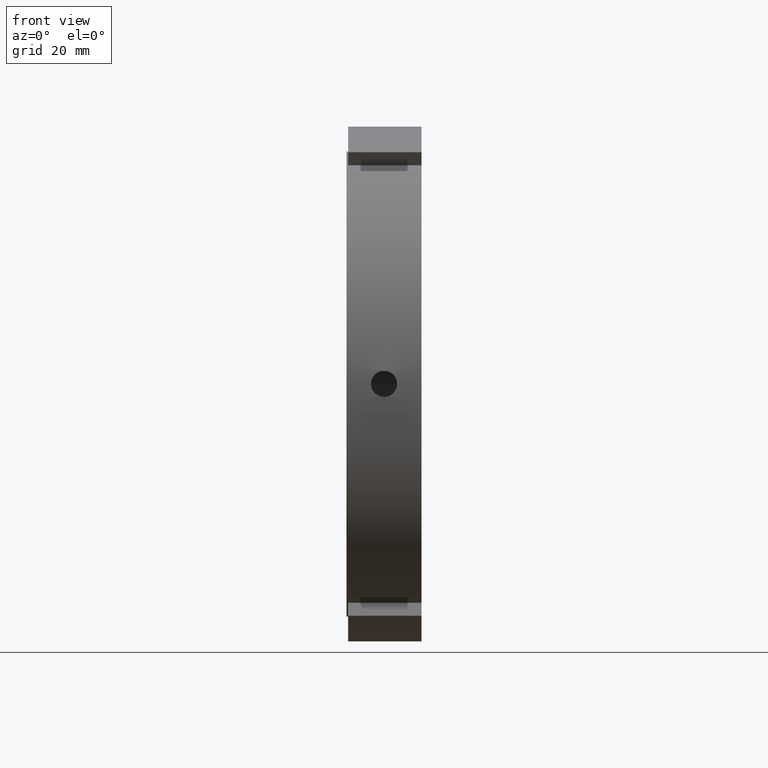
[diagram: clean part render]
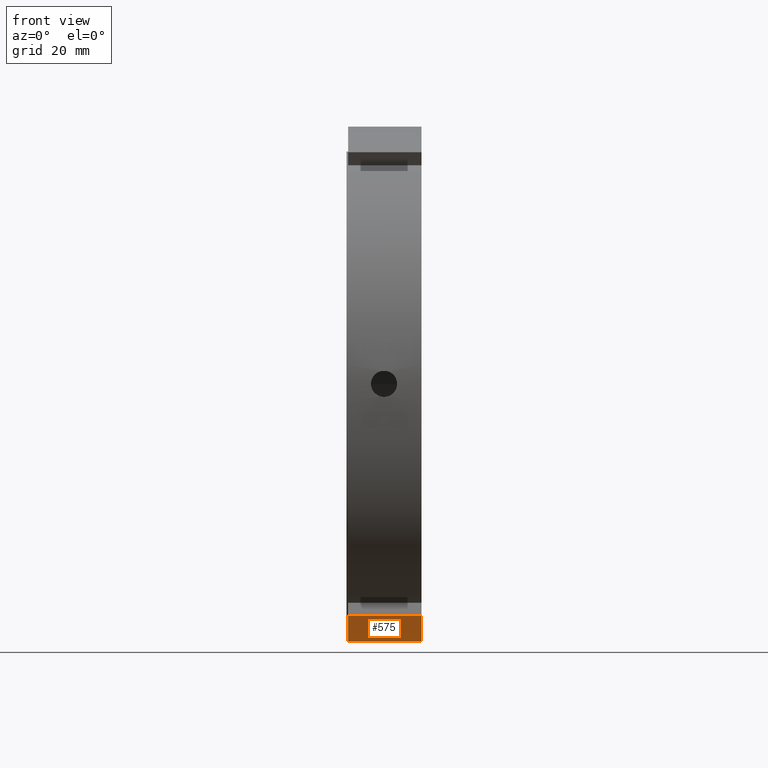
[diagram: same view with one face highlighted and labeled with its STEP entity id]
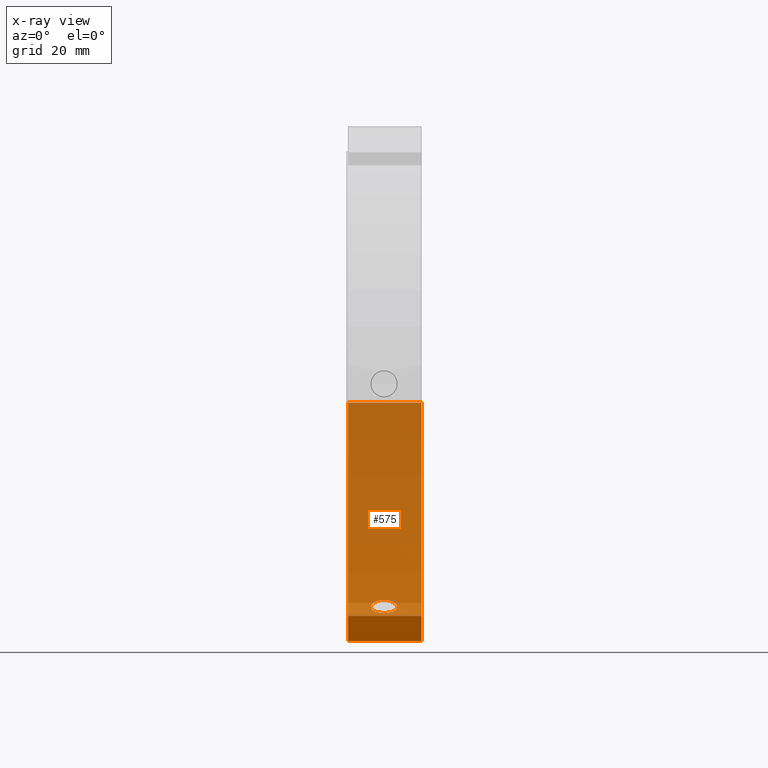
[diagram: x-ray of the same camera — body ghosted, the highlighted face saturated]
A machine part, front view. The second image highlights one B-rep face of the part: STEP entity #575.
The next image is the same camera in x-ray: the body ghosted, the highlighted face saturated — about 89% of this face is hidden behind the body in this view.
In plain terms, the highlighted cylindrical surface (partial cylindrical patch) has radius 82.5 mm, axis along (1, 0, 0).
Its self-contained STEP definition (entity closure, byte-faithful):
#113=CARTESIAN_POINT('',(0.499999999999976,-35.944612033000844,-74.257894299508990));
#114=VERTEX_POINT('',#113);
#123=CARTESIAN_POINT('',(23.999999999999986,-35.944612033000844,-74.257894299508990));
#124=VERTEX_POINT('',#123);
#125=CARTESIAN_POINT('',(23.999999999999986,-35.944612033000830,-74.257894299508990));
#126=DIRECTION('',(-1.0,0.0,0.0));
#127=VECTOR('',#126,23.500000000000011);
#128=LINE('',#125,#127);
#129=EDGE_CURVE('',#124,#114,#128,.T.);
#365=CARTESIAN_POINT('',(11.999999999999984,37.569901796612641,-73.448978747106381));
#366=VERTEX_POINT('',#365);
#367=CARTESIAN_POINT('',(11.999999999999984,37.569901796612633,-73.448978747106366));
#368=CARTESIAN_POINT('',(12.525951644810846,37.569901796612633,-73.448978747106366));
#369=CARTESIAN_POINT('',(13.086898726166451,37.663724201861129,-73.401223789579447));
#370=CARTESIAN_POINT('',(14.118708632293316,38.043922445372267,-73.204888767631658));
#371=CARTESIAN_POINT('',(14.589579118633829,38.330149495457150,-73.056060949011709));
#372=CARTESIAN_POINT('',(15.333147197132222,38.987452250635073,-72.707406559938065));
#373=CARTESIAN_POINT('',(15.655441065487333,39.402346513019410,-72.484283453373507));
#374=CARTESIAN_POINT('',(16.082869968049625,40.305945062747753,-71.985741998525981));
#375=CARTESIAN_POINT('',(16.187999999999988,40.794512616672485,-71.710071575592792));
#376=CARTESIAN_POINT('',(16.187999999999981,41.705487383327494,-71.184120048839574));
#377=CARTESIAN_POINT('',(16.082869968049614,42.188508749621988,-70.898843347142517));
#378=CARTESIAN_POINT('',(15.655441065487315,43.072057589223789,-70.365574775678766));
#379=CARTESIAN_POINT('',(15.333147197132222,43.472734998872170,-70.117827357851780));
#380=CARTESIAN_POINT('',(14.589579118633827,44.103329934539843,-69.722913668427026));
#381=CARTESIAN_POINT('',(14.118708632293306,44.375332131296958,-69.549447681113236));
#382=CARTESIAN_POINT('',(13.086898726166440,44.735462369711883,-69.318353854732266));
#383=CARTESIAN_POINT('',(12.525951644810844,44.823730578711086,-69.260978747106378));
#384=CARTESIAN_POINT('',(11.474048355189122,44.823730578711086,-69.260978747106378));
#385=CARTESIAN_POINT('',(10.913101273833519,44.735462369711883,-69.318353854732266));
#386=CARTESIAN_POINT('',(9.881291367706655,44.375332131296958,-69.549447681113236));
#387=CARTESIAN_POINT('',(9.410420881366139,44.103329934539843,-69.722913668427069));
#388=CARTESIAN_POINT('',(8.666852802867748,43.472734998872170,-70.117827357851823));
#389=CARTESIAN_POINT('',(8.344558934512650,43.072057589223782,-70.365574775678766));
#390=CARTESIAN_POINT('',(7.917130031950350,42.188508749621995,-70.898843347142517));
#391=CARTESIAN_POINT('',(7.811999999999985,41.705487383327494,-71.184120048839574));
#392=CARTESIAN_POINT('',(7.811999999999982,40.794512616672485,-71.710071575592792));
#393=CARTESIAN_POINT('',(7.917130031950341,40.305945062747753,-71.985741998525981));
#394=CARTESIAN_POINT('',(8.344558934512634,39.402346513019410,-72.484283453373507));
#395=CARTESIAN_POINT('',(8.666852802867748,38.987452250635073,-72.707406559938065));
#396=CARTESIAN_POINT('',(9.410420881366138,38.330149495457150,-73.056060949011709));
#397=CARTESIAN_POINT('',(9.881291367706648,38.043922445372267,-73.204888767631658));
#398=CARTESIAN_POINT('',(10.913101273833517,37.663724201861122,-73.401223789579447));
#399=CARTESIAN_POINT('',(11.474048355189122,37.569901796612633,-73.448978747106366));
#400=CARTESIAN_POINT('',(11.999999999999984,37.569901796612633,-73.448978747106366));
#401=B_SPLINE_CURVE_WITH_KNOTS('',3,(#367,#368,#369,#370,#371,#372,#373,#374,#375,#376,#377,#378,#379,#380,#381,#382,#383,#384,#385,#386,#387,#388,#389,#390,#391,#392,#393,#394,#395,#396,#397,#398,#399,#400),.UNSPECIFIED.,.T.,.U.,(4,2,2,2,2,2,2,2,2,2,2,2,2,2,2,2,4),(0.0,0.157785493443259,0.315570986886518,0.473356444912485,0.631141902938452,0.788927360964419,0.946712818990387,1.104498312433645,1.262283805876903,1.420069299320161,1.577854792763420,1.735640250789386,1.893425708815353,2.051211166841319,2.208996624867286,2.366782118310545,2.524567611753804),.UNSPECIFIED.);
#402=EDGE_CURVE('',#366,#366,#401,.T.);
#456=CARTESIAN_POINT('',(23.999999999999986,82.281528911414853,-5.999999999999996));
#457=VERTEX_POINT('',#456);
#458=CARTESIAN_POINT('',(23.999999999999986,0.0,0.0));
#459=DIRECTION('',(1.0,0.0,0.0));
#460=DIRECTION('',(0.0,1.0,0.0));
#461=AXIS2_PLACEMENT_3D('',#458,#459,#460);
#462=CIRCLE('',#461,82.500000000000000);
#463=EDGE_CURVE('',#124,#457,#462,.T.);
#548=CARTESIAN_POINT('',(12.249999999999980,0.0,0.0));
#549=DIRECTION('',(1.0,0.0,0.0));
#550=DIRECTION('',(0.0,1.0,0.0));
#551=AXIS2_PLACEMENT_3D('',#548,#549,#550);
#552=CYLINDRICAL_SURFACE('',#551,82.500000000000000);
#553=ORIENTED_EDGE('',*,*,#129,.T.);
#554=CARTESIAN_POINT('',(0.499999999999976,82.281528911414853,-5.999999999999996));
#555=VERTEX_POINT('',#554);
#556=CARTESIAN_POINT('',(0.499999999999976,0.0,0.0));
#557=DIRECTION('',(1.0,0.0,0.0));
#558=DIRECTION('',(0.0,1.0,0.0));
#559=AXIS2_PLACEMENT_3D('',#556,#557,#558);
#560=CIRCLE('',#559,82.500000000000000);
#561=EDGE_CURVE('',#114,#555,#560,.T.);
#562=ORIENTED_EDGE('',*,*,#561,.T.);
#563=CARTESIAN_POINT('',(0.499999999999975,82.281528911414853,-5.999999999999996));
#564=DIRECTION('',(1.0,0.0,0.0));
#565=VECTOR('',#564,23.500000000000011);
#566=LINE('',#563,#565);
#567=EDGE_CURVE('',#555,#457,#566,.T.);
#568=ORIENTED_EDGE('',*,*,#567,.T.);
#569=ORIENTED_EDGE('',*,*,#463,.F.);
#570=EDGE_LOOP('',(#553,#562,#568,#569));
#571=FACE_OUTER_BOUND('',#570,.T.);
#572=ORIENTED_EDGE('',*,*,#402,.T.);
#573=EDGE_LOOP('',(#572));
#574=FACE_BOUND('',#573,.T.);
#575=ADVANCED_FACE('',(#571,#574),#552,.T.);